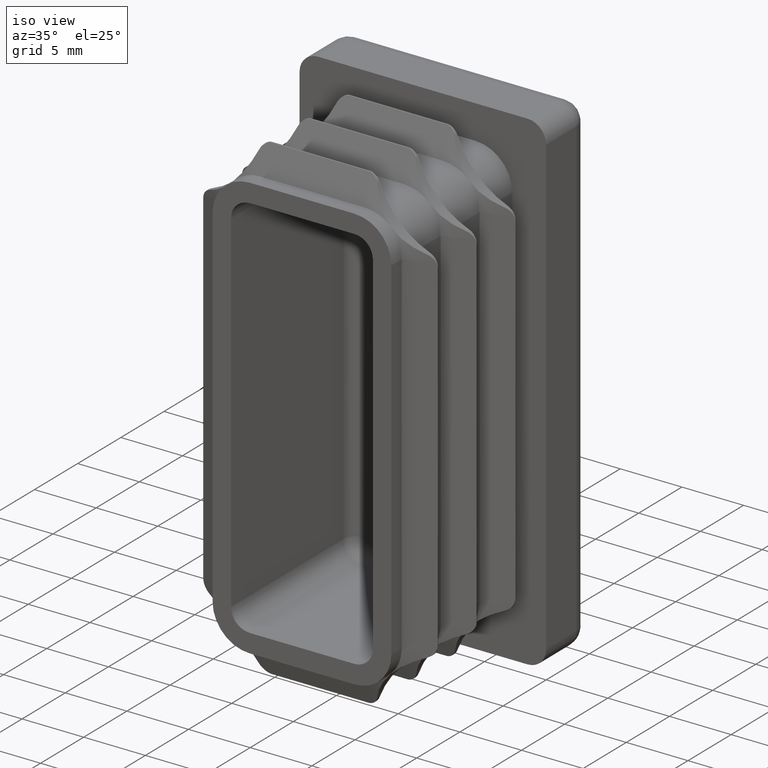
[diagram: clean part render]
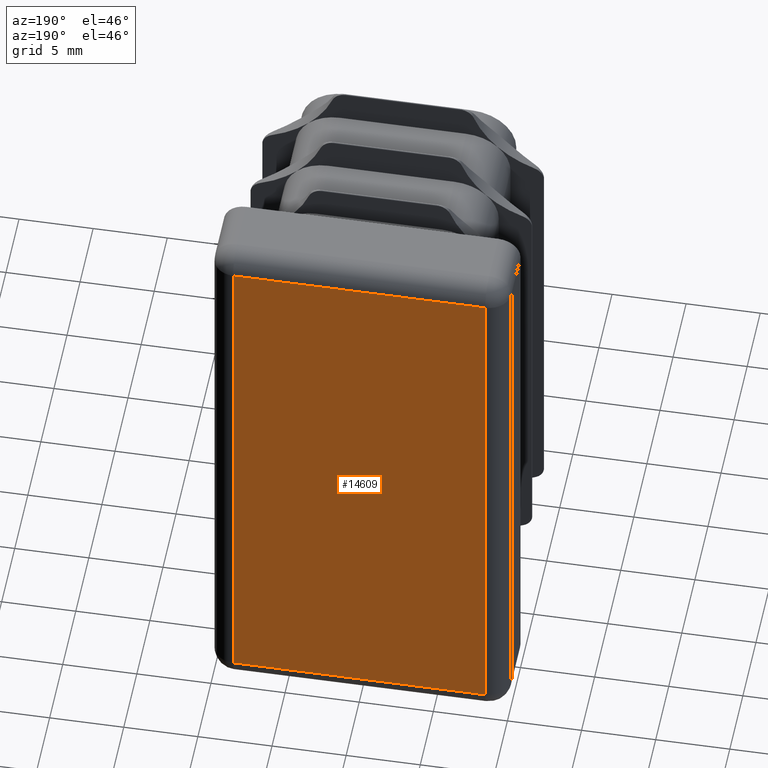
[diagram: tour spotlight — one face highlighted and labeled with its STEP entity id]
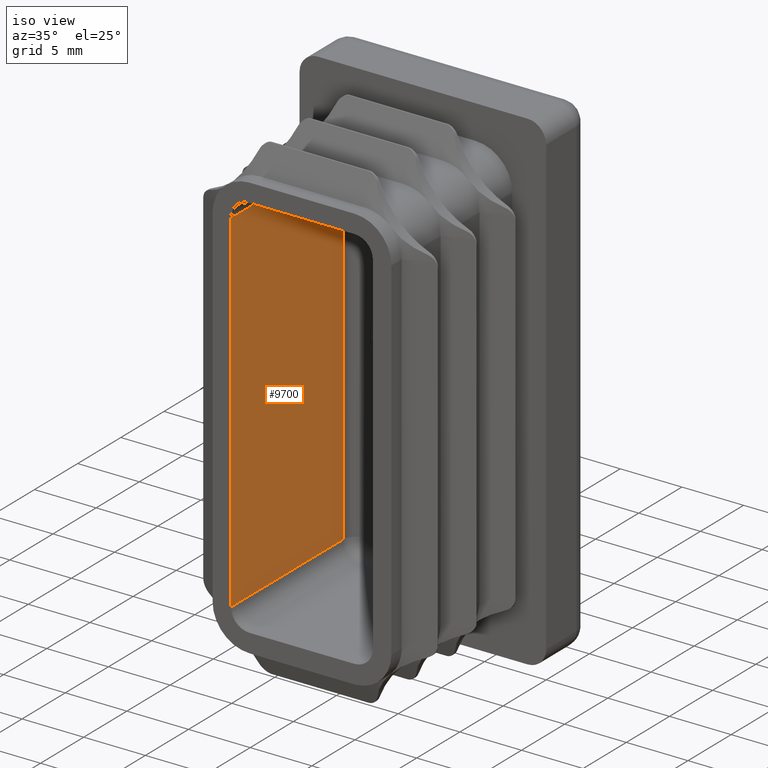
[diagram: tour spotlight — one face highlighted and labeled with its STEP entity id]
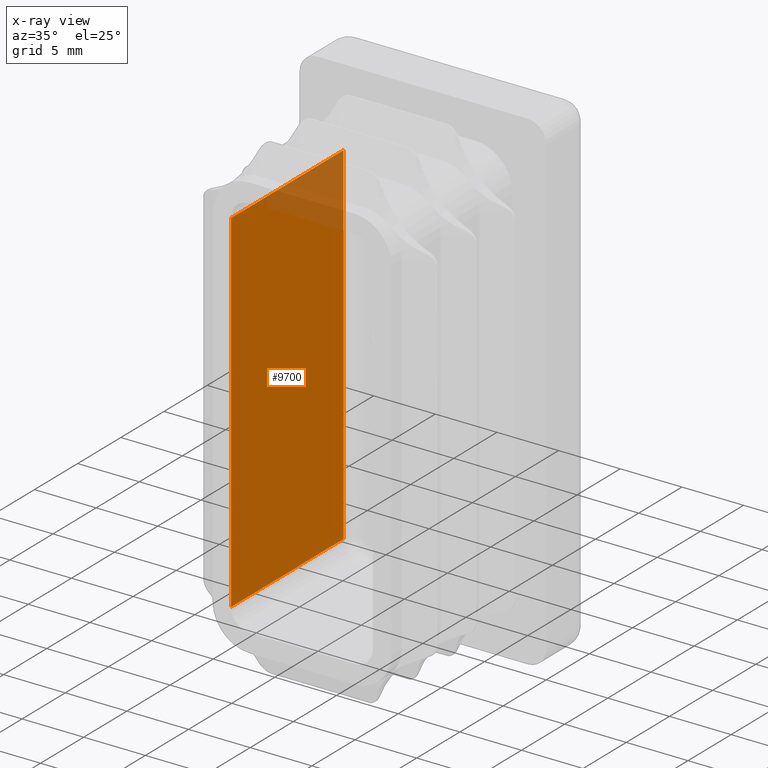
[diagram: x-ray of the same camera — body ghosted, this tour face saturated]
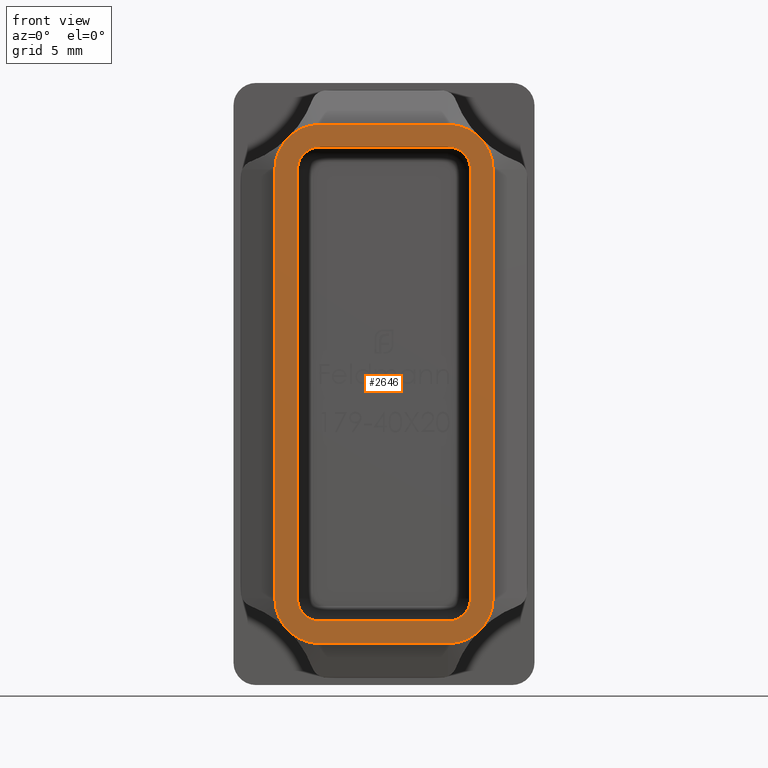
[diagram: tour spotlight — one face highlighted and labeled with its STEP entity id]
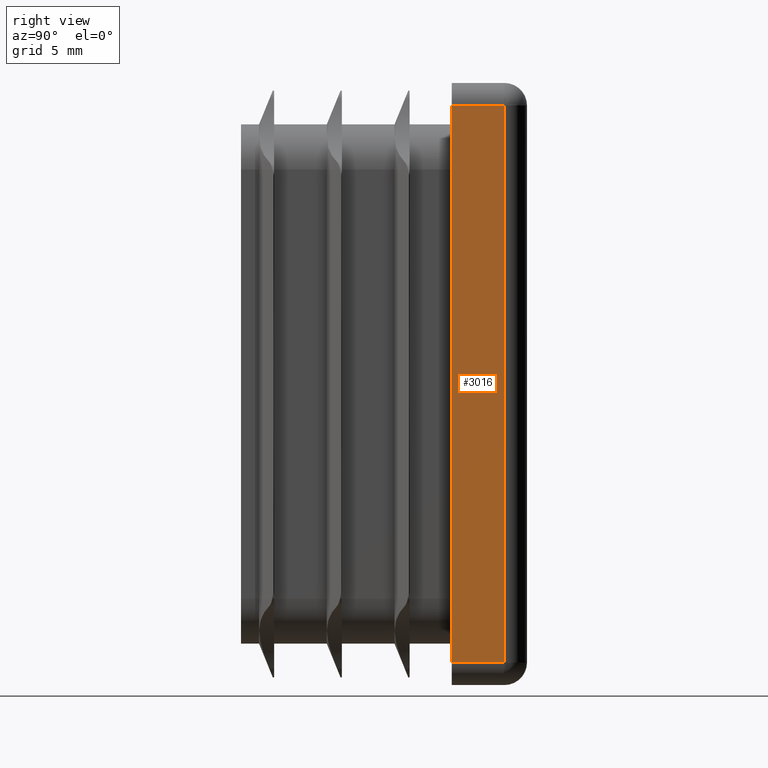
[diagram: tour spotlight — one face highlighted and labeled with its STEP entity id]
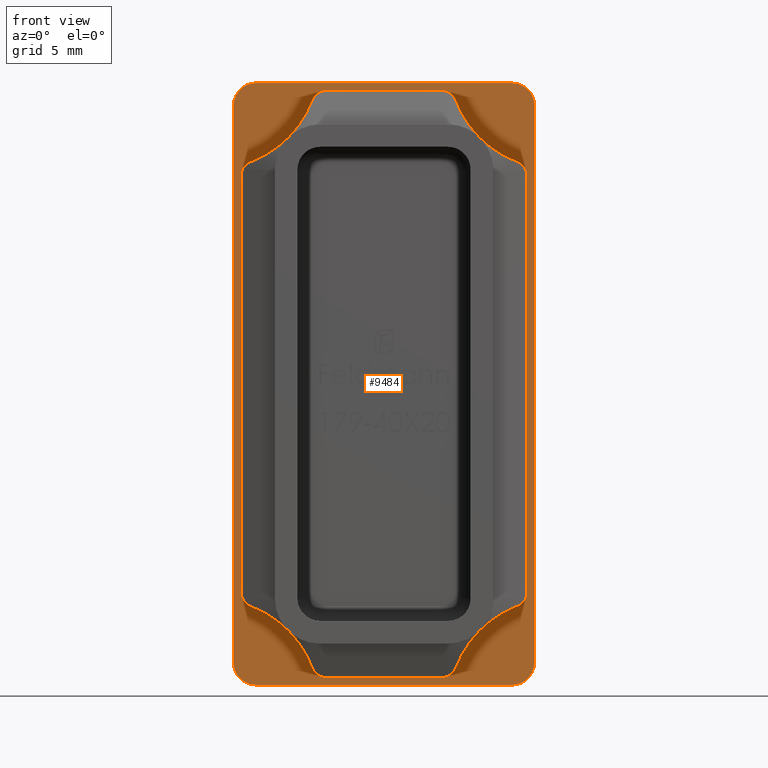
[diagram: tour spotlight — one face highlighted and labeled with its STEP entity id]
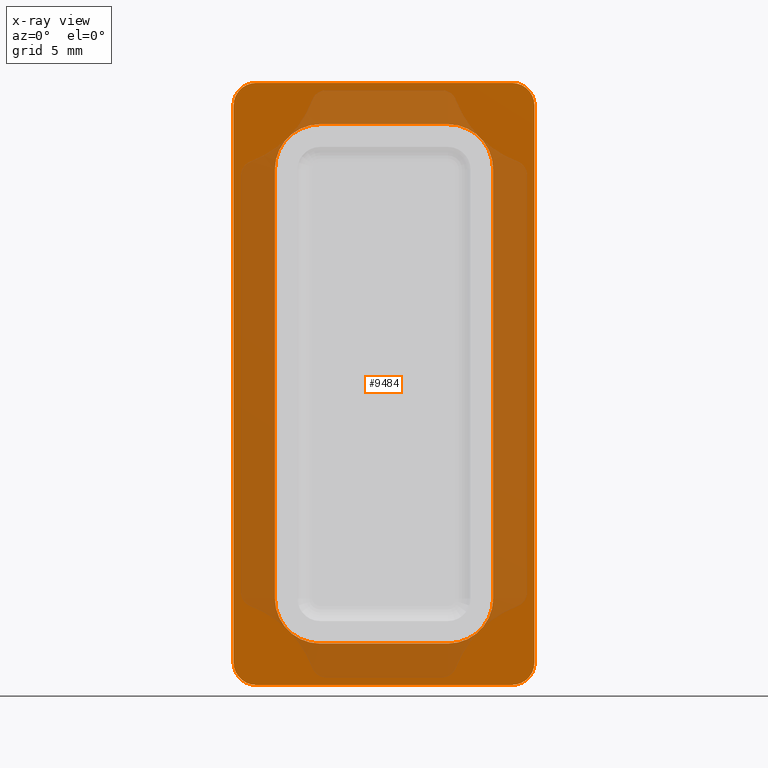
[diagram: x-ray of the same camera — body ghosted, this tour face saturated]
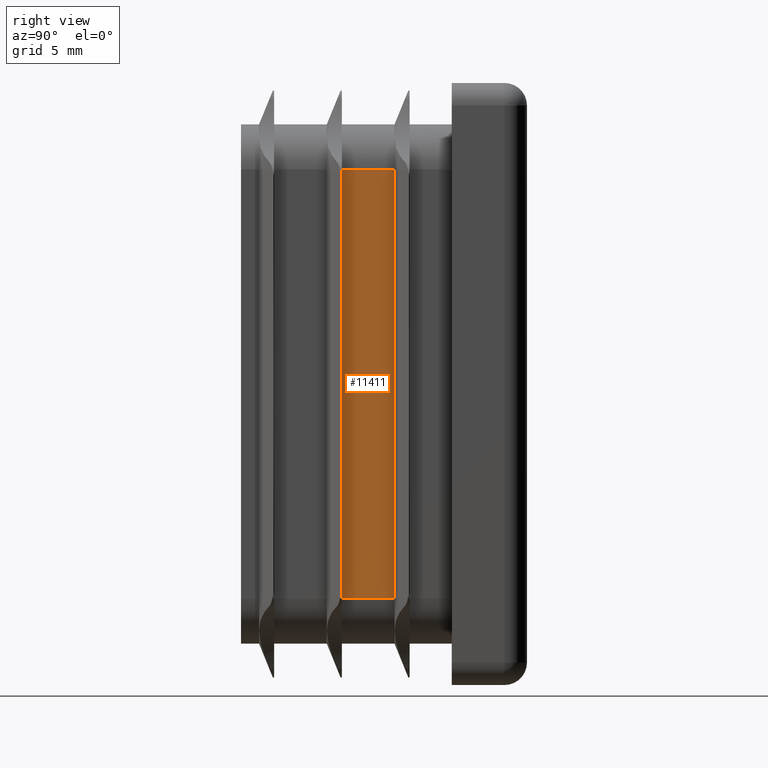
[diagram: tour spotlight — one face highlighted and labeled with its STEP entity id]
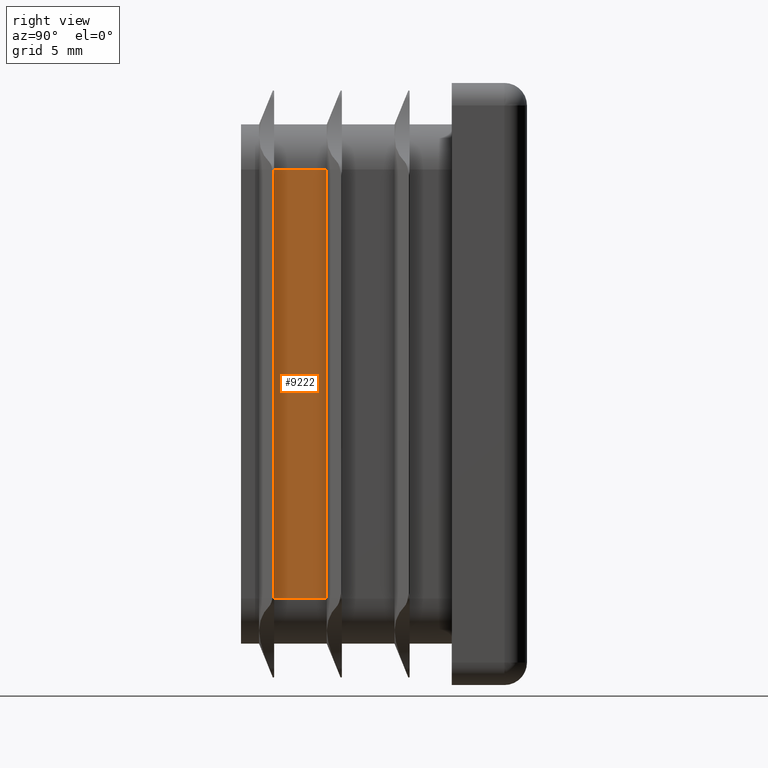
[diagram: tour spotlight — one face highlighted and labeled with its STEP entity id]
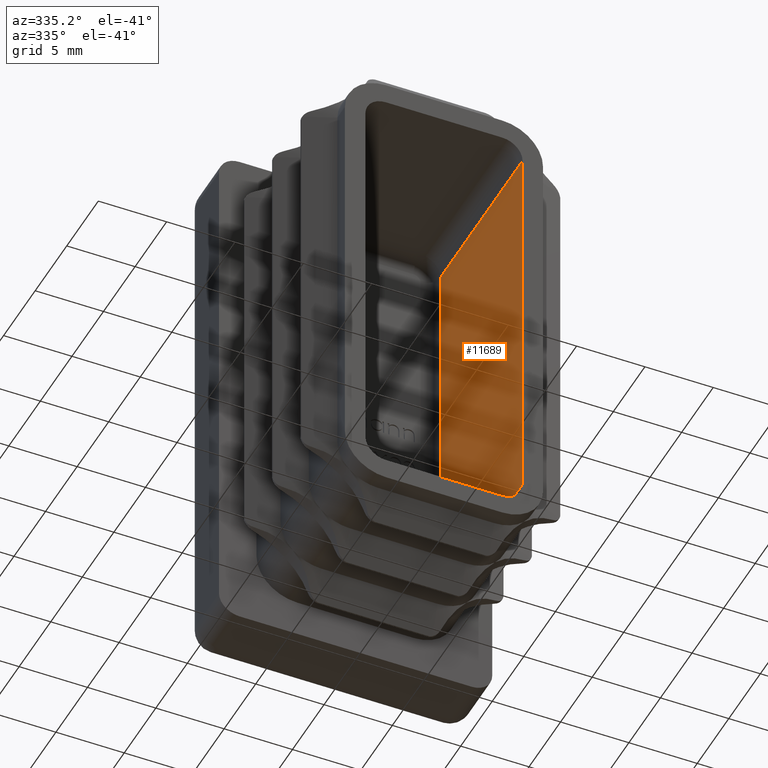
[diagram: tour spotlight — one face highlighted and labeled with its STEP entity id]
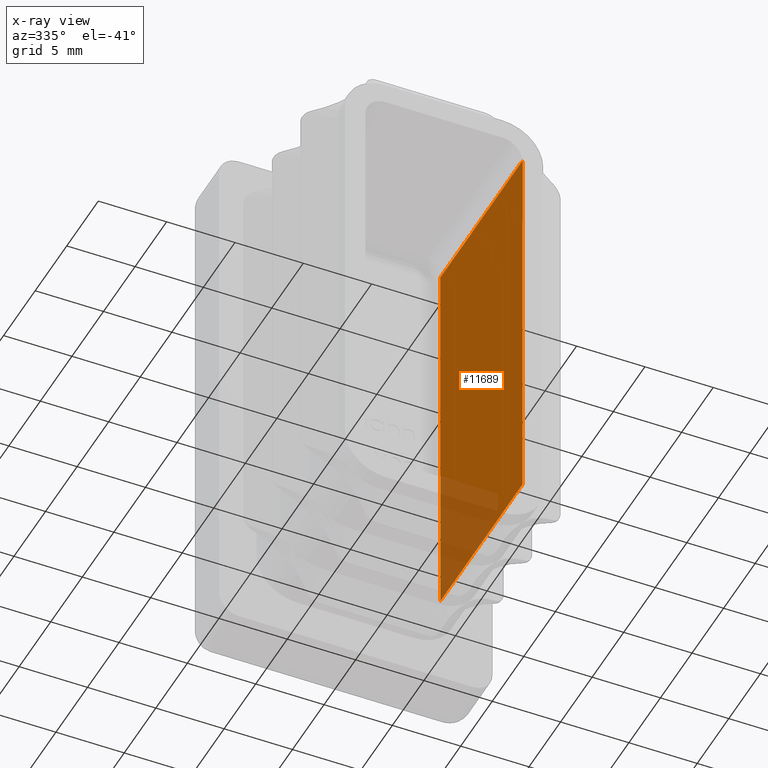
[diagram: x-ray of the same camera — body ghosted, this tour face saturated]
A machine part: a face-by-face anatomy tour. The part has 447 B-rep faces; the first image is the clean iso view, then the 8 largest visible faces are spotlighted one at a time (largest first), each with its STEP entity span.

Face 1 — auxiliary view, entity #14609. In plain terms, the highlighted planar face has unit normal (0, 1, 0).
Definition (entity closure, byte-faithful):
#180 = VECTOR ( 'NONE', #11767, 1000.000000000000000 ) ;
#647 = LINE ( 'NONE', #8558, #180 ) ;
#654 = AXIS2_PLACEMENT_3D ( 'NONE', #18822, #8409, #11312 ) ;
#1038 = PLANE ( 'NONE',  #654 ) ;
#1414 = CARTESIAN_POINT ( 'NONE',  ( -8.499999999999996447, 5.000000000000000000, 18.50000000000000000 ) ) ;
#2298 = DIRECTION ( 'NONE',  ( 1.000000000000000000, -0.000000000000000000, 0.000000000000000000 ) ) ;
#2825 = LINE ( 'NONE', #17149, #8555 ) ;
#3050 = CARTESIAN_POINT ( 'NONE',  ( 8.500000000000000000, 5.000000000000000000, -18.50000000000000000 ) ) ;
#3173 = VECTOR ( 'NONE', #9996, 1000.000000000000000 ) ;
#3285 = CARTESIAN_POINT ( 'NONE',  ( -8.500000000000000000, 5.000000000000000000, -18.50000000000000000 ) ) ;
#4873 = VERTEX_POINT ( 'NONE', #1414 ) ;
#5452 = EDGE_CURVE ( 'NONE', #7691, #4873, #5924, .T. ) ;
#5509 = EDGE_CURVE ( 'NONE', #17380, #7691, #15833, .T. ) ;
#5924 = LINE ( 'NONE', #9618, #9604 ) ;
#6018 = EDGE_CURVE ( 'NONE', #9917, #17380, #647, .T. ) ;
#7691 = VERTEX_POINT ( 'NONE', #3285 ) ;
#8074 = ORIENTED_EDGE ( 'NONE', *, *, #5452, .T. ) ;
#8409 = DIRECTION ( 'NONE',  ( 0.000000000000000000, 1.000000000000000000, 0.000000000000000000 ) ) ;
#8555 = VECTOR ( 'NONE', #2298, 1000.000000000000000 ) ;
#8558 = CARTESIAN_POINT ( 'NONE',  ( 8.500000000000000000, 5.000000000000000000, -18.50000000000000000 ) ) ;
#8956 = EDGE_LOOP ( 'NONE', ( #8074, #15411, #18825, #10207 ) ) ;
#9604 = VECTOR ( 'NONE', #17448, 1000.000000000000000 ) ;
#9618 = CARTESIAN_POINT ( 'NONE',  ( -8.499999999999996447, 5.000000000000000000, 18.50000000000000000 ) ) ;
#9917 = VERTEX_POINT ( 'NONE', #19038 ) ;
#9996 = DIRECTION ( 'NONE',  ( -1.000000000000000000, 0.000000000000000000, 0.000000000000000000 ) ) ;
#10207 = ORIENTED_EDGE ( 'NONE', *, *, #5509, .T. ) ;
#10472 = FACE_OUTER_BOUND ( 'NONE', #8956, .T. ) ;
#11312 = DIRECTION ( 'NONE',  ( 0.000000000000000000, -0.000000000000000000, 1.000000000000000000 ) ) ;
#11409 = EDGE_CURVE ( 'NONE', #4873, #9917, #2825, .T. ) ;
#11413 = CARTESIAN_POINT ( 'NONE',  ( -8.500000000000000000, 5.000000000000000000, -18.50000000000000000 ) ) ;
#11767 = DIRECTION ( 'NONE',  ( -8.673617379884035472E-17, 0.000000000000000000, -1.000000000000000000 ) ) ;
#14609 = ADVANCED_FACE ( 'NONE', ( #10472 ), #1038, .T. ) ;
#15411 = ORIENTED_EDGE ( 'NONE', *, *, #11409, .T. ) ;
#15833 = LINE ( 'NONE', #11413, #3173 ) ;
#17149 = CARTESIAN_POINT ( 'NONE',  ( 8.500000000000005329, 5.000000000000000000, 18.50000000000000000 ) ) ;
#17380 = VERTEX_POINT ( 'NONE', #3050 ) ;
#17448 = DIRECTION ( 'NONE',  ( 8.673617379884035472E-17, -0.000000000000000000, 1.000000000000000000 ) ) ;
#18822 = CARTESIAN_POINT ( 'NONE',  ( 0.000000000000000000, 5.000000000000000000, 0.000000000000000000 ) ) ;
#18825 = ORIENTED_EDGE ( 'NONE', *, *, #6018, .T. ) ;
#19038 = CARTESIAN_POINT ( 'NONE',  ( 8.500000000000003553, 5.000000000000000000, 18.50000000000000000 ) ) ;

Face 2 — iso view, entity #9700. An x-ray twin of the same camera follows (body ghosted, this face saturated) — the face is partly hidden behind the body. In plain terms, the highlighted planar face has unit normal (1, 0, 0).
Definition (entity closure, byte-faithful):
#209 = CARTESIAN_POINT ( 'NONE',  ( -5.750000000000003553, -0.9999999999999991118, 14.24999999999999822 ) ) ;
#867 = VECTOR ( 'NONE', #15155, 1000.000000000000000 ) ;
#1065 = DIRECTION ( 'NONE',  ( 1.000000000000000000, 0.000000000000000000, 3.043374519257556522E-16 ) ) ;
#1185 = DIRECTION ( 'NONE',  ( 3.043374519257556522E-16, -0.000000000000000000, -1.000000000000000000 ) ) ;
#1639 = EDGE_CURVE ( 'NONE', #15874, #14099, #17480, .T. ) ;
#2060 = CARTESIAN_POINT ( 'NONE',  ( -5.749999999999992895, -14.00000000000000000, -14.25000000000000178 ) ) ;
#2155 = CARTESIAN_POINT ( 'NONE',  ( -5.750000000000003553, -0.9999999999999991118, 14.24999999999999822 ) ) ;
#2811 = ORIENTED_EDGE ( 'NONE', *, *, #9888, .T. ) ;
#2913 = LINE ( 'NONE', #10322, #867 ) ;
#3573 = VECTOR ( 'NONE', #4863, 1000.000000000000000 ) ;
#3818 = CARTESIAN_POINT ( 'NONE',  ( -5.749999999999992895, -0.9999999999999991118, -14.25000000000000178 ) ) ;
#4863 = DIRECTION ( 'NONE',  ( -3.043374519257556522E-16, -0.000000000000000000, 1.000000000000000000 ) ) ;
#5225 = PLANE ( 'NONE',  #9578 ) ;
#6841 = EDGE_CURVE ( 'NONE', #7759, #12595, #2913, .T. ) ;
#7122 = VECTOR ( 'NONE', #13275, 1000.000000000000000 ) ;
#7759 = VERTEX_POINT ( 'NONE', #2060 ) ;
#8147 = LINE ( 'NONE', #14608, #11814 ) ;
#8979 = EDGE_CURVE ( 'NONE', #12595, #14099, #15543, .T. ) ;
#9394 = CARTESIAN_POINT ( 'NONE',  ( -5.750000000000003553, -14.00000000000000000, 14.24999999999999822 ) ) ;
#9578 = AXIS2_PLACEMENT_3D ( 'NONE', #12692, #1065, #17073 ) ;
#9700 = ADVANCED_FACE ( 'NONE', ( #18732 ), #5225, .T. ) ;
#9888 = EDGE_CURVE ( 'NONE', #15874, #7759, #8147, .T. ) ;
#10252 = CARTESIAN_POINT ( 'NONE',  ( -5.750000000000003553, -14.00000000000000000, 14.24999999999999822 ) ) ;
#10322 = CARTESIAN_POINT ( 'NONE',  ( -5.749999999999992895, -14.00000000000000000, -14.25000000000000178 ) ) ;
#11424 = ORIENTED_EDGE ( 'NONE', *, *, #8979, .T. ) ;
#11814 = VECTOR ( 'NONE', #1185, 1000.000000000000000 ) ;
#12005 = ORIENTED_EDGE ( 'NONE', *, *, #6841, .T. ) ;
#12595 = VERTEX_POINT ( 'NONE', #3818 ) ;
#12692 = CARTESIAN_POINT ( 'NONE',  ( -5.750000000000003553, -14.00000000000000000, 14.24999999999999822 ) ) ;
#13275 = DIRECTION ( 'NONE',  ( -0.000000000000000000, 1.000000000000000000, -0.000000000000000000 ) ) ;
#14099 = VERTEX_POINT ( 'NONE', #2155 ) ;
#14608 = CARTESIAN_POINT ( 'NONE',  ( -5.750000000000003553, -14.00000000000000000, 14.24999999999999822 ) ) ;
#15155 = DIRECTION ( 'NONE',  ( -0.000000000000000000, 1.000000000000000000, -0.000000000000000000 ) ) ;
#15543 = LINE ( 'NONE', #209, #3573 ) ;
#15874 = VERTEX_POINT ( 'NONE', #9394 ) ;
#16509 = EDGE_LOOP ( 'NONE', ( #12005, #11424, #18595, #2811 ) ) ;
#17073 = DIRECTION ( 'NONE',  ( 3.043374519257556522E-16, 0.000000000000000000, -1.000000000000000000 ) ) ;
#17480 = LINE ( 'NONE', #10252, #7122 ) ;
#18595 = ORIENTED_EDGE ( 'NONE', *, *, #1639, .F. ) ;
#18732 = FACE_OUTER_BOUND ( 'NONE', #16509, .T. ) ;

Face 3 — front view, entity #2646. In plain terms, the highlighted planar face has unit normal (0, -1, 0).
Definition (entity closure, byte-faithful):
#83 = AXIS2_PLACEMENT_3D ( 'NONE', #9398, #10700, #3304 ) ;
#116 = CARTESIAN_POINT ( 'NONE',  ( 4.250000000000004441, -14.00000000000000000, -15.75000000000000000 ) ) ;
#208 = CARTESIAN_POINT ( 'NONE',  ( -7.250000000000002665, -14.00000000000000000, 14.24999999999999822 ) ) ;
#429 = VERTEX_POINT ( 'NONE', #4672 ) ;
#430 = DIRECTION ( 'NONE',  ( 0.000000000000000000, -1.000000000000000000, 0.000000000000000000 ) ) ;
#919 = ORIENTED_EDGE ( 'NONE', *, *, #13043, .F. ) ;
#1058 = VERTEX_POINT ( 'NONE', #12426 ) ;
#1133 = AXIS2_PLACEMENT_3D ( 'NONE', #4182, #1302, #17550 ) ;
#1185 = DIRECTION ( 'NONE',  ( 3.043374519257556522E-16, -0.000000000000000000, -1.000000000000000000 ) ) ;
#1302 = DIRECTION ( 'NONE',  ( 0.000000000000000000, -1.000000000000000000, 0.000000000000000000 ) ) ;
#1350 = EDGE_CURVE ( 'NONE', #14514, #7612, #3449, .T. ) ;
#1476 = LINE ( 'NONE', #208, #16678 ) ;
#1510 = DIRECTION ( 'NONE',  ( 0.000000000000000000, 0.000000000000000000, -1.000000000000000000 ) ) ;
#1550 = CARTESIAN_POINT ( 'NONE',  ( -4.250000000000002665, -14.00000000000000000, 15.75000000000000000 ) ) ;
#1587 = ORIENTED_EDGE ( 'NONE', *, *, #16663, .T. ) ;
#1611 = EDGE_CURVE ( 'NONE', #10362, #15693, #9670, .T. ) ;
#1733 = DIRECTION ( 'NONE',  ( 0.000000000000000000, -1.000000000000000000, 0.000000000000000000 ) ) ;
#1751 = AXIS2_PLACEMENT_3D ( 'NONE', #10375, #10437, #1510 ) ;
#2013 = EDGE_CURVE ( 'NONE', #429, #14253, #3660, .T. ) ;
#2060 = CARTESIAN_POINT ( 'NONE',  ( -5.749999999999992895, -14.00000000000000000, -14.25000000000000178 ) ) ;
#2120 = CARTESIAN_POINT ( 'NONE',  ( -4.249999999999994671, -14.00000000000000000, -17.25000000000000000 ) ) ;
#2163 = VERTEX_POINT ( 'NONE', #14793 ) ;
#2169 = LINE ( 'NONE', #3127, #8350 ) ;
#2480 = CIRCLE ( 'NONE', #3734, 1.499999999999999556 ) ;
#2582 = CARTESIAN_POINT ( 'NONE',  ( -4.250000000000002665, -14.00000000000000000, 17.25000000000000000 ) ) ;
#2646 = ADVANCED_FACE ( 'NONE', ( #17901, #6871 ), #18308, .T. ) ;
#2841 = DIRECTION ( 'NONE',  ( 0.000000000000000000, 0.000000000000000000, 1.000000000000000000 ) ) ;
#2925 = CARTESIAN_POINT ( 'NONE',  ( 5.749999999999998224, -14.00000000000000000, 14.25000000000000178 ) ) ;
#3004 = CIRCLE ( 'NONE', #4157, 1.499999999999997780 ) ;
#3127 = CARTESIAN_POINT ( 'NONE',  ( 7.249999999999997335, -14.00000000000000000, 14.25000000000000178 ) ) ;
#3304 = DIRECTION ( 'NONE',  ( 0.000000000000000000, 0.000000000000000000, 1.000000000000000000 ) ) ;
#3344 = ORIENTED_EDGE ( 'NONE', *, *, #10332, .T. ) ;
#3449 = LINE ( 'NONE', #6407, #18172 ) ;
#3608 = LINE ( 'NONE', #2120, #6835 ) ;
#3660 = CIRCLE ( 'NONE', #1133, 2.999999999999999112 ) ;
#3699 = ORIENTED_EDGE ( 'NONE', *, *, #18725, .T. ) ;
#3734 = AXIS2_PLACEMENT_3D ( 'NONE', #14659, #18902, #8805 ) ;
#3751 = VECTOR ( 'NONE', #11445, 1000.000000000000000 ) ;
#3767 = AXIS2_PLACEMENT_3D ( 'NONE', #9117, #1733, #10408 ) ;
#3824 = CARTESIAN_POINT ( 'NONE',  ( 4.250000000000006217, -14.00000000000000000, -14.25000000000000178 ) ) ;
#3868 = ORIENTED_EDGE ( 'NONE', *, *, #2013, .T. ) ;
#3921 = CIRCLE ( 'NONE', #83, 2.999999999999999112 ) ;
#4039 = CARTESIAN_POINT ( 'NONE',  ( -4.249999999999994671, -14.00000000000000000, -15.75000000000000000 ) ) ;
#4157 = AXIS2_PLACEMENT_3D ( 'NONE', #12222, #430, #7717 ) ;
#4160 = ORIENTED_EDGE ( 'NONE', *, *, #9888, .F. ) ;
#4182 = CARTESIAN_POINT ( 'NONE',  ( -4.249999999999994671, -14.00000000000000000, -14.25000000000000178 ) ) ;
#4403 = CIRCLE ( 'NONE', #15052, 3.000000000000000888 ) ;
#4672 = CARTESIAN_POINT ( 'NONE',  ( -7.249999999999994671, -14.00000000000000000, -14.25000000000000533 ) ) ;
#4825 = CARTESIAN_POINT ( 'NONE',  ( -4.249999999999994671, -14.00000000000000000, -15.75000000000000000 ) ) ;
#4912 = DIRECTION ( 'NONE',  ( -1.000000000000000000, -0.000000000000000000, -0.000000000000000000 ) ) ;
#5514 = DIRECTION ( 'NONE',  ( 1.000000000000000000, 0.000000000000000000, 0.000000000000000000 ) ) ;
#5741 = VECTOR ( 'NONE', #5514, 1000.000000000000000 ) ;
#5938 = EDGE_CURVE ( 'NONE', #2163, #14514, #2480, .T. ) ;
#6138 = EDGE_CURVE ( 'NONE', #14253, #10362, #3608, .T. ) ;
#6407 = CARTESIAN_POINT ( 'NONE',  ( -4.250000000000002665, -14.00000000000000000, 15.75000000000000000 ) ) ;
#6723 = DIRECTION ( 'NONE',  ( 0.000000000000000000, -0.000000000000000000, -1.000000000000000000 ) ) ;
#6818 = VERTEX_POINT ( 'NONE', #18231 ) ;
#6835 = VECTOR ( 'NONE', #10935, 1000.000000000000000 ) ;
#6871 = FACE_BOUND ( 'NONE', #8184, .T. ) ;
#7159 = DIRECTION ( 'NONE',  ( 0.000000000000000000, -1.000000000000000000, 0.000000000000000000 ) ) ;
#7517 = CARTESIAN_POINT ( 'NONE',  ( 7.249999999999997335, -14.00000000000000000, 14.25000000000000178 ) ) ;
#7612 = VERTEX_POINT ( 'NONE', #1550 ) ;
#7717 = DIRECTION ( 'NONE',  ( 0.000000000000000000, 0.000000000000000000, -1.000000000000000000 ) ) ;
#7759 = VERTEX_POINT ( 'NONE', #2060 ) ;
#7849 = AXIS2_PLACEMENT_3D ( 'NONE', #10172, #11646, #2841 ) ;
#8147 = LINE ( 'NONE', #14608, #11814 ) ;
#8184 = EDGE_LOOP ( 'NONE', ( #4160, #8317, #16474, #13187, #17145, #919, #8207, #14970 ) ) ;
#8207 = ORIENTED_EDGE ( 'NONE', *, *, #13216, .F. ) ;
#8317 = ORIENTED_EDGE ( 'NONE', *, *, #11884, .F. ) ;
#8350 = VECTOR ( 'NONE', #13284, 1000.000000000000000 ) ;
#8594 = VERTEX_POINT ( 'NONE', #7517 ) ;
#8652 = CARTESIAN_POINT ( 'NONE',  ( 4.249999999999997335, -14.00000000000000000, 14.25000000000000000 ) ) ;
#8805 = DIRECTION ( 'NONE',  ( 0.000000000000000000, 0.000000000000000000, 1.000000000000000000 ) ) ;
#8924 = EDGE_CURVE ( 'NONE', #7759, #11712, #10469, .T. ) ;
#9117 = CARTESIAN_POINT ( 'NONE',  ( -4.249999999999994671, -14.00000000000000000, -14.25000000000000178 ) ) ;
#9326 = CARTESIAN_POINT ( 'NONE',  ( 4.249999999999997335, -14.00000000000000000, 15.75000000000000000 ) ) ;
#9394 = CARTESIAN_POINT ( 'NONE',  ( -5.750000000000003553, -14.00000000000000000, 14.24999999999999822 ) ) ;
#9398 = CARTESIAN_POINT ( 'NONE',  ( -4.250000000000002665, -14.00000000000000000, 14.25000000000000178 ) ) ;
#9670 = CIRCLE ( 'NONE', #1751, 2.999999999999999112 ) ;
#9888 = EDGE_CURVE ( 'NONE', #15874, #7759, #8147, .T. ) ;
#10172 = CARTESIAN_POINT ( 'NONE',  ( -4.250000000000002665, -14.00000000000000000, 14.25000000000000178 ) ) ;
#10332 = EDGE_CURVE ( 'NONE', #1058, #15378, #16885, .T. ) ;
#10362 = VERTEX_POINT ( 'NONE', #13237 ) ;
#10375 = CARTESIAN_POINT ( 'NONE',  ( 4.250000000000006217, -14.00000000000000000, -14.25000000000000178 ) ) ;
#10408 = DIRECTION ( 'NONE',  ( 0.000000000000000000, 0.000000000000000000, 1.000000000000000000 ) ) ;
#10437 = DIRECTION ( 'NONE',  ( 0.000000000000000000, -1.000000000000000000, 0.000000000000000000 ) ) ;
#10469 = CIRCLE ( 'NONE', #3767, 1.499999999999999556 ) ;
#10556 = ORIENTED_EDGE ( 'NONE', *, *, #16043, .T. ) ;
#10700 = DIRECTION ( 'NONE',  ( 0.000000000000000000, -1.000000000000000000, 0.000000000000000000 ) ) ;
#10935 = DIRECTION ( 'NONE',  ( 1.000000000000000000, 0.000000000000000000, 0.000000000000000000 ) ) ;
#10964 = ORIENTED_EDGE ( 'NONE', *, *, #6138, .T. ) ;
#11356 = DIRECTION ( 'NONE',  ( 0.000000000000000000, 0.000000000000000000, 1.000000000000000000 ) ) ;
#11445 = DIRECTION ( 'NONE',  ( -1.000000000000000000, -0.000000000000000000, -0.000000000000000000 ) ) ;
#11646 = DIRECTION ( 'NONE',  ( 0.000000000000000000, -1.000000000000000000, 0.000000000000000000 ) ) ;
#11712 = VERTEX_POINT ( 'NONE', #4825 ) ;
#11747 = ORIENTED_EDGE ( 'NONE', *, *, #1611, .T. ) ;
#11814 = VECTOR ( 'NONE', #1185, 1000.000000000000000 ) ;
#11848 = AXIS2_PLACEMENT_3D ( 'NONE', #3824, #12379, #6723 ) ;
#11884 = EDGE_CURVE ( 'NONE', #7612, #15874, #15231, .T. ) ;
#11885 = DIRECTION ( 'NONE',  ( 2.739037067331800130E-16, -0.000000000000000000, -1.000000000000000000 ) ) ;
#11989 = LINE ( 'NONE', #2925, #18883 ) ;
#12016 = VERTEX_POINT ( 'NONE', #16151 ) ;
#12222 = CARTESIAN_POINT ( 'NONE',  ( 4.250000000000006217, -14.00000000000000000, -14.25000000000000178 ) ) ;
#12379 = DIRECTION ( 'NONE',  ( 0.000000000000000000, -1.000000000000000000, 0.000000000000000000 ) ) ;
#12426 = CARTESIAN_POINT ( 'NONE',  ( 4.249999999999997335, -14.00000000000000000, 17.25000000000000000 ) ) ;
#13043 = EDGE_CURVE ( 'NONE', #13797, #12016, #3004, .T. ) ;
#13187 = ORIENTED_EDGE ( 'NONE', *, *, #5938, .F. ) ;
#13216 = EDGE_CURVE ( 'NONE', #11712, #13797, #17254, .T. ) ;
#13237 = CARTESIAN_POINT ( 'NONE',  ( 4.250000000000006217, -14.00000000000000000, -17.25000000000000000 ) ) ;
#13284 = DIRECTION ( 'NONE',  ( -2.739037067331800623E-16, -0.000000000000000000, 1.000000000000000000 ) ) ;
#13494 = ORIENTED_EDGE ( 'NONE', *, *, #13703, .T. ) ;
#13703 = EDGE_CURVE ( 'NONE', #8594, #1058, #4403, .T. ) ;
#13797 = VERTEX_POINT ( 'NONE', #116 ) ;
#14253 = VERTEX_POINT ( 'NONE', #16277 ) ;
#14514 = VERTEX_POINT ( 'NONE', #9326 ) ;
#14543 = CARTESIAN_POINT ( 'NONE',  ( 7.250000000000005329, -14.00000000000000000, -14.24999999999999822 ) ) ;
#14608 = CARTESIAN_POINT ( 'NONE',  ( -5.750000000000003553, -14.00000000000000000, 14.24999999999999822 ) ) ;
#14659 = CARTESIAN_POINT ( 'NONE',  ( 4.249999999999997335, -14.00000000000000000, 14.25000000000000000 ) ) ;
#14793 = CARTESIAN_POINT ( 'NONE',  ( 5.749999999999998224, -14.00000000000000000, 14.25000000000000178 ) ) ;
#14970 = ORIENTED_EDGE ( 'NONE', *, *, #8924, .F. ) ;
#15052 = AXIS2_PLACEMENT_3D ( 'NONE', #8652, #7159, #11356 ) ;
#15231 = CIRCLE ( 'NONE', #7849, 1.499999999999997780 ) ;
#15378 = VERTEX_POINT ( 'NONE', #15608 ) ;
#15608 = CARTESIAN_POINT ( 'NONE',  ( -4.250000000000002665, -14.00000000000000000, 17.25000000000000000 ) ) ;
#15693 = VERTEX_POINT ( 'NONE', #14543 ) ;
#15874 = VERTEX_POINT ( 'NONE', #9394 ) ;
#16043 = EDGE_CURVE ( 'NONE', #6818, #429, #1476, .T. ) ;
#16151 = CARTESIAN_POINT ( 'NONE',  ( 5.750000000000007105, -14.00000000000000000, -14.25000000000000000 ) ) ;
#16277 = CARTESIAN_POINT ( 'NONE',  ( -4.249999999999994671, -14.00000000000000000, -17.25000000000000000 ) ) ;
#16360 = DIRECTION ( 'NONE',  ( -3.043374519257556029E-16, -0.000000000000000000, 1.000000000000000000 ) ) ;
#16474 = ORIENTED_EDGE ( 'NONE', *, *, #1350, .F. ) ;
#16663 = EDGE_CURVE ( 'NONE', #15693, #8594, #2169, .T. ) ;
#16678 = VECTOR ( 'NONE', #11885, 1000.000000000000000 ) ;
#16885 = LINE ( 'NONE', #2582, #3751 ) ;
#17145 = ORIENTED_EDGE ( 'NONE', *, *, #18554, .F. ) ;
#17183 = EDGE_LOOP ( 'NONE', ( #11747, #1587, #13494, #3344, #3699, #10556, #3868, #10964 ) ) ;
#17254 = LINE ( 'NONE', #4039, #5741 ) ;
#17550 = DIRECTION ( 'NONE',  ( 0.000000000000000000, 0.000000000000000000, 1.000000000000000000 ) ) ;
#17901 = FACE_OUTER_BOUND ( 'NONE', #17183, .T. ) ;
#18172 = VECTOR ( 'NONE', #4912, 1000.000000000000000 ) ;
#18231 = CARTESIAN_POINT ( 'NONE',  ( -7.250000000000002665, -14.00000000000000000, 14.24999999999999822 ) ) ;
#18308 = PLANE ( 'NONE',  #11848 ) ;
#18554 = EDGE_CURVE ( 'NONE', #12016, #2163, #11989, .T. ) ;
#18725 = EDGE_CURVE ( 'NONE', #15378, #6818, #3921, .T. ) ;
#18883 = VECTOR ( 'NONE', #16360, 1000.000000000000000 ) ;
#18902 = DIRECTION ( 'NONE',  ( 0.000000000000000000, -1.000000000000000000, 0.000000000000000000 ) ) ;

Face 4 — right view, entity #3016. In plain terms, the highlighted planar face has unit normal (-1, 0, 0).
Definition (entity closure, byte-faithful):
#631 = VERTEX_POINT ( 'NONE', #14915 ) ;
#903 = CARTESIAN_POINT ( 'NONE',  ( 10.00000000000000355, 0.000000000000000000, 18.50000000000000000 ) ) ;
#1409 = EDGE_CURVE ( 'NONE', #10716, #7274, #14029, .T. ) ;
#1631 = AXIS2_PLACEMENT_3D ( 'NONE', #12625, #12495, #2157 ) ;
#2157 = DIRECTION ( 'NONE',  ( 8.673617379884035472E-17, 0.000000000000000000, 1.000000000000000000 ) ) ;
#2650 = ORIENTED_EDGE ( 'NONE', *, *, #12310, .T. ) ;
#3016 = ADVANCED_FACE ( 'NONE', ( #4780 ), #14165, .F. ) ;
#3333 = VERTEX_POINT ( 'NONE', #3451 ) ;
#3451 = CARTESIAN_POINT ( 'NONE',  ( 10.00000000000000000, 3.500000000000000000, -18.50000000000000000 ) ) ;
#3482 = LINE ( 'NONE', #14446, #14294 ) ;
#4780 = FACE_OUTER_BOUND ( 'NONE', #14092, .T. ) ;
#5630 = ORIENTED_EDGE ( 'NONE', *, *, #13562, .T. ) ;
#7252 = VECTOR ( 'NONE', #13120, 1000.000000000000000 ) ;
#7274 = VERTEX_POINT ( 'NONE', #10567 ) ;
#7886 = ORIENTED_EDGE ( 'NONE', *, *, #1409, .T. ) ;
#8415 = EDGE_CURVE ( 'NONE', #7274, #3333, #17845, .T. ) ;
#8600 = DIRECTION ( 'NONE',  ( 0.000000000000000000, -1.000000000000000000, 0.000000000000000000 ) ) ;
#8928 = CARTESIAN_POINT ( 'NONE',  ( 10.00000000000000000, 5.000000000000000000, -18.50000000000000000 ) ) ;
#9432 = CARTESIAN_POINT ( 'NONE',  ( 10.00000000000000355, 3.500000000000000000, 18.50000000000000000 ) ) ;
#9620 = CARTESIAN_POINT ( 'NONE',  ( 10.00000000000000000, 0.000000000000000000, -20.00000000000000000 ) ) ;
#10567 = CARTESIAN_POINT ( 'NONE',  ( 10.00000000000000000, 0.000000000000000000, -18.50000000000000000 ) ) ;
#10716 = VERTEX_POINT ( 'NONE', #903 ) ;
#11054 = LINE ( 'NONE', #9432, #14019 ) ;
#12310 = EDGE_CURVE ( 'NONE', #631, #10716, #3482, .T. ) ;
#12495 = DIRECTION ( 'NONE',  ( -1.000000000000000000, 0.000000000000000000, 8.673617379884035472E-17 ) ) ;
#12509 = ORIENTED_EDGE ( 'NONE', *, *, #8415, .T. ) ;
#12625 = CARTESIAN_POINT ( 'NONE',  ( 10.00000000000000000, 5.000000000000000000, -20.00000000000000000 ) ) ;
#13120 = DIRECTION ( 'NONE',  ( -0.000000000000000000, 1.000000000000000000, -0.000000000000000000 ) ) ;
#13562 = EDGE_CURVE ( 'NONE', #3333, #631, #11054, .T. ) ;
#13868 = DIRECTION ( 'NONE',  ( 8.673617379884035472E-17, -0.000000000000000000, 1.000000000000000000 ) ) ;
#14019 = VECTOR ( 'NONE', #13868, 1000.000000000000000 ) ;
#14029 = LINE ( 'NONE', #9620, #18414 ) ;
#14044 = DIRECTION ( 'NONE',  ( -8.673617379884035472E-17, -0.000000000000000000, -1.000000000000000000 ) ) ;
#14092 = EDGE_LOOP ( 'NONE', ( #12509, #5630, #2650, #7886 ) ) ;
#14165 = PLANE ( 'NONE',  #1631 ) ;
#14294 = VECTOR ( 'NONE', #8600, 1000.000000000000000 ) ;
#14446 = CARTESIAN_POINT ( 'NONE',  ( 10.00000000000000355, 5.000000000000000000, 18.50000000000000000 ) ) ;
#14915 = CARTESIAN_POINT ( 'NONE',  ( 10.00000000000000355, 3.500000000000000000, 18.50000000000000000 ) ) ;
#17845 = LINE ( 'NONE', #8928, #7252 ) ;
#18414 = VECTOR ( 'NONE', #14044, 1000.000000000000000 ) ;

Face 5 — front view, entity #9484. An x-ray twin of the same camera follows (body ghosted, this face saturated) — the face is partly hidden behind the body. In plain terms, the highlighted planar face has unit normal (0, 1, 0).
Definition (entity closure, byte-faithful):
#52 = EDGE_CURVE ( 'NONE', #6203, #1511, #8314, .T. ) ;
#72 = CARTESIAN_POINT ( 'NONE',  ( -8.500000000000000000, 0.000000000000000000, -20.00000000000000000 ) ) ;
#111 = CARTESIAN_POINT ( 'NONE',  ( 4.250000000000006217, 0.000000000000000000, -17.25000000000000000 ) ) ;
#130 = CIRCLE ( 'NONE', #6424, 2.999999999999999112 ) ;
#262 = CIRCLE ( 'NONE', #4795, 1.500000000000001332 ) ;
#412 = VERTEX_POINT ( 'NONE', #16401 ) ;
#524 = CARTESIAN_POINT ( 'NONE',  ( 4.249999999999997335, 0.000000000000000000, 14.25000000000000000 ) ) ;
#543 = CARTESIAN_POINT ( 'NONE',  ( 7.249999999999997335, 0.000000000000000000, 14.25000000000000178 ) ) ;
#787 = EDGE_CURVE ( 'NONE', #10716, #4417, #262, .T. ) ;
#903 = CARTESIAN_POINT ( 'NONE',  ( 10.00000000000000355, 0.000000000000000000, 18.50000000000000000 ) ) ;
#984 = DIRECTION ( 'NONE',  ( 2.739037067331800130E-16, -0.000000000000000000, -1.000000000000000000 ) ) ;
#1385 = EDGE_CURVE ( 'NONE', #7388, #16708, #17937, .T. ) ;
#1409 = EDGE_CURVE ( 'NONE', #10716, #7274, #14029, .T. ) ;
#1477 = DIRECTION ( 'NONE',  ( -0.000000000000000000, -1.000000000000000000, -0.000000000000000000 ) ) ;
#1511 = VERTEX_POINT ( 'NONE', #13022 ) ;
#1623 = VERTEX_POINT ( 'NONE', #111 ) ;
#1744 = CARTESIAN_POINT ( 'NONE',  ( -8.499999999999996447, 0.000000000000000000, 18.50000000000000000 ) ) ;
#1786 = CARTESIAN_POINT ( 'NONE',  ( 7.250000000000006217, 0.000000000000000000, -14.24999999999999822 ) ) ;
#1864 = VECTOR ( 'NONE', #11167, 1000.000000000000000 ) ;
#2345 = EDGE_CURVE ( 'NONE', #12389, #5555, #13084, .T. ) ;
#2432 = DIRECTION ( 'NONE',  ( 0.000000000000000000, -1.000000000000000000, 0.000000000000000000 ) ) ;
#2661 = CARTESIAN_POINT ( 'NONE',  ( -7.249999999999994671, 0.000000000000000000, -14.25000000000000533 ) ) ;
#2664 = ORIENTED_EDGE ( 'NONE', *, *, #15476, .F. ) ;
#2976 = VECTOR ( 'NONE', #16472, 1000.000000000000000 ) ;
#3219 = DIRECTION ( 'NONE',  ( -0.000000000000000000, -1.000000000000000000, -0.000000000000000000 ) ) ;
#3586 = DIRECTION ( 'NONE',  ( -3.469446951953611033E-15, 0.000000000000000000, 1.000000000000000000 ) ) ;
#3592 = CARTESIAN_POINT ( 'NONE',  ( -10.00000000000000000, 0.000000000000000000, -18.50000000000000000 ) ) ;
#3637 = CIRCLE ( 'NONE', #6811, 1.500000000000001332 ) ;
#3680 = EDGE_CURVE ( 'NONE', #13990, #14803, #13627, .T. ) ;
#3852 = EDGE_LOOP ( 'NONE', ( #12758, #16761, #5495, #14544, #13989, #7632, #18996, #6692 ) ) ;
#4301 = CARTESIAN_POINT ( 'NONE',  ( 8.500000000000001776, 0.000000000000000000, -18.50000000000000000 ) ) ;
#4417 = VERTEX_POINT ( 'NONE', #17710 ) ;
#4453 = FACE_BOUND ( 'NONE', #11235, .T. ) ;
#4627 = VECTOR ( 'NONE', #17943, 1000.000000000000000 ) ;
#4795 = AXIS2_PLACEMENT_3D ( 'NONE', #6608, #9306, #3586 ) ;
#4860 = EDGE_CURVE ( 'NONE', #13990, #7274, #3637, .T. ) ;
#5112 = VERTEX_POINT ( 'NONE', #18882 ) ;
#5230 = CARTESIAN_POINT ( 'NONE',  ( -4.249999999999994671, -0.000000000000000000, -17.25000000000000000 ) ) ;
#5236 = CARTESIAN_POINT ( 'NONE',  ( -4.249999999999994671, -0.000000000000000000, -14.25000000000000178 ) ) ;
#5495 = ORIENTED_EDGE ( 'NONE', *, *, #1409, .F. ) ;
#5547 = ORIENTED_EDGE ( 'NONE', *, *, #10328, .F. ) ;
#5555 = VERTEX_POINT ( 'NONE', #13144 ) ;
#5753 = VECTOR ( 'NONE', #18409, 1000.000000000000000 ) ;
#6134 = DIRECTION ( 'NONE',  ( 0.000000000000000000, 1.000000000000000000, 0.000000000000000000 ) ) ;
#6144 = DIRECTION ( 'NONE',  ( 0.000000000000000000, -1.000000000000000000, 0.000000000000000000 ) ) ;
#6165 = DIRECTION ( 'NONE',  ( 0.000000000000000000, 0.000000000000000000, 1.000000000000000000 ) ) ;
#6203 = VERTEX_POINT ( 'NONE', #3592 ) ;
#6351 = CARTESIAN_POINT ( 'NONE',  ( -9.999999999999996447, 0.000000000000000000, 20.00000000000000000 ) ) ;
#6424 = AXIS2_PLACEMENT_3D ( 'NONE', #6775, #17013, #15347 ) ;
#6608 = CARTESIAN_POINT ( 'NONE',  ( 8.500000000000003553, 0.000000000000000000, 18.50000000000000000 ) ) ;
#6692 = ORIENTED_EDGE ( 'NONE', *, *, #7611, .T. ) ;
#6748 = LINE ( 'NONE', #12665, #13190 ) ;
#6775 = CARTESIAN_POINT ( 'NONE',  ( 4.250000000000006217, 0.000000000000000000, -14.25000000000000178 ) ) ;
#6811 = AXIS2_PLACEMENT_3D ( 'NONE', #4301, #1477, #12089 ) ;
#6858 = CARTESIAN_POINT ( 'NONE',  ( -4.250000000000002665, 0.000000000000000000, 14.25000000000000178 ) ) ;
#7135 = CARTESIAN_POINT ( 'NONE',  ( -4.250000000000002665, 0.000000000000000000, 17.25000000000000000 ) ) ;
#7274 = VERTEX_POINT ( 'NONE', #10567 ) ;
#7388 = VERTEX_POINT ( 'NONE', #2661 ) ;
#7446 = DIRECTION ( 'NONE',  ( 0.000000000000000000, 0.000000000000000000, 1.000000000000000000 ) ) ;
#7453 = FACE_OUTER_BOUND ( 'NONE', #3852, .T. ) ;
#7611 = EDGE_CURVE ( 'NONE', #6203, #14803, #11208, .T. ) ;
#7632 = ORIENTED_EDGE ( 'NONE', *, *, #7708, .T. ) ;
#7708 = EDGE_CURVE ( 'NONE', #16612, #1511, #17179, .T. ) ;
#7905 = VECTOR ( 'NONE', #14542, 1000.000000000000000 ) ;
#8314 = LINE ( 'NONE', #13725, #4627 ) ;
#8316 = CIRCLE ( 'NONE', #17409, 3.000000000000000888 ) ;
#8837 = AXIS2_PLACEMENT_3D ( 'NONE', #1744, #3219, #6165 ) ;
#9216 = LINE ( 'NONE', #5230, #1864 ) ;
#9306 = DIRECTION ( 'NONE',  ( -0.000000000000000000, -1.000000000000000000, -0.000000000000000000 ) ) ;
#9484 = ADVANCED_FACE ( 'NONE', ( #4453, #7453 ), #10717, .F. ) ;
#9620 = CARTESIAN_POINT ( 'NONE',  ( 10.00000000000000000, 0.000000000000000000, -20.00000000000000000 ) ) ;
#9852 = VERTEX_POINT ( 'NONE', #13072 ) ;
#9915 = EDGE_CURVE ( 'NONE', #9852, #412, #12984, .T. ) ;
#9974 = AXIS2_PLACEMENT_3D ( 'NONE', #6858, #17167, #18626 ) ;
#10122 = LINE ( 'NONE', #6351, #15657 ) ;
#10328 = EDGE_CURVE ( 'NONE', #5112, #7388, #6748, .T. ) ;
#10348 = CARTESIAN_POINT ( 'NONE',  ( -8.500000000000000000, 0.000000000000000000, -18.50000000000000000 ) ) ;
#10525 = DIRECTION ( 'NONE',  ( 0.000000000000000000, 0.000000000000000000, 1.000000000000000000 ) ) ;
#10567 = CARTESIAN_POINT ( 'NONE',  ( 10.00000000000000000, 0.000000000000000000, -18.50000000000000000 ) ) ;
#10716 = VERTEX_POINT ( 'NONE', #903 ) ;
#10717 = PLANE ( 'NONE',  #13269 ) ;
#10989 = DIRECTION ( 'NONE',  ( 1.000000000000000000, 0.000000000000000000, 0.000000000000000000 ) ) ;
#11167 = DIRECTION ( 'NONE',  ( 1.000000000000000000, 0.000000000000000000, 0.000000000000000000 ) ) ;
#11208 = CIRCLE ( 'NONE', #17105, 1.500000000000001332 ) ;
#11235 = EDGE_LOOP ( 'NONE', ( #18224, #15455, #13461, #2664, #17610, #16212, #5547, #15283 ) ) ;
#12089 = DIRECTION ( 'NONE',  ( 0.000000000000000000, 0.000000000000000000, 1.000000000000000000 ) ) ;
#12223 = EDGE_CURVE ( 'NONE', #412, #5112, #15699, .T. ) ;
#12389 = VERTEX_POINT ( 'NONE', #1786 ) ;
#12591 = EDGE_CURVE ( 'NONE', #16708, #1623, #9216, .T. ) ;
#12665 = CARTESIAN_POINT ( 'NONE',  ( -7.250000000000002665, 0.000000000000000000, 14.24999999999999822 ) ) ;
#12758 = ORIENTED_EDGE ( 'NONE', *, *, #3680, .F. ) ;
#12766 = DIRECTION ( 'NONE',  ( 0.000000000000000000, 0.000000000000000000, 1.000000000000000000 ) ) ;
#12984 = LINE ( 'NONE', #7135, #7905 ) ;
#13022 = CARTESIAN_POINT ( 'NONE',  ( -9.999999999999996447, 0.000000000000000000, 18.50000000000000000 ) ) ;
#13072 = CARTESIAN_POINT ( 'NONE',  ( 4.249999999999997335, 0.000000000000000000, 17.25000000000000000 ) ) ;
#13084 = LINE ( 'NONE', #543, #2976 ) ;
#13144 = CARTESIAN_POINT ( 'NONE',  ( 7.249999999999997335, 0.000000000000000000, 14.25000000000000178 ) ) ;
#13190 = VECTOR ( 'NONE', #984, 1000.000000000000000 ) ;
#13269 = AXIS2_PLACEMENT_3D ( 'NONE', #14955, #6134, #13544 ) ;
#13461 = ORIENTED_EDGE ( 'NONE', *, *, #2345, .F. ) ;
#13544 = DIRECTION ( 'NONE',  ( 0.000000000000000000, -0.000000000000000000, 1.000000000000000000 ) ) ;
#13563 = EDGE_CURVE ( 'NONE', #16612, #4417, #10122, .T. ) ;
#13627 = LINE ( 'NONE', #16939, #5753 ) ;
#13725 = CARTESIAN_POINT ( 'NONE',  ( -10.00000000000000000, 0.000000000000000000, -20.00000000000000000 ) ) ;
#13989 = ORIENTED_EDGE ( 'NONE', *, *, #13563, .F. ) ;
#13990 = VERTEX_POINT ( 'NONE', #15087 ) ;
#14029 = LINE ( 'NONE', #9620, #18414 ) ;
#14044 = DIRECTION ( 'NONE',  ( -8.673617379884035472E-17, -0.000000000000000000, -1.000000000000000000 ) ) ;
#14302 = AXIS2_PLACEMENT_3D ( 'NONE', #5236, #2432, #12766 ) ;
#14542 = DIRECTION ( 'NONE',  ( -1.000000000000000000, -0.000000000000000000, -0.000000000000000000 ) ) ;
#14544 = ORIENTED_EDGE ( 'NONE', *, *, #787, .T. ) ;
#14803 = VERTEX_POINT ( 'NONE', #72 ) ;
#14955 = CARTESIAN_POINT ( 'NONE',  ( 0.000000000000000000, 0.000000000000000000, 0.000000000000000000 ) ) ;
#15087 = CARTESIAN_POINT ( 'NONE',  ( 8.500000000000001776, 0.000000000000000000, -20.00000000000000000 ) ) ;
#15283 = ORIENTED_EDGE ( 'NONE', *, *, #12223, .F. ) ;
#15347 = DIRECTION ( 'NONE',  ( 0.000000000000000000, 0.000000000000000000, -1.000000000000000000 ) ) ;
#15455 = ORIENTED_EDGE ( 'NONE', *, *, #18138, .F. ) ;
#15476 = EDGE_CURVE ( 'NONE', #1623, #12389, #130, .T. ) ;
#15657 = VECTOR ( 'NONE', #10989, 1000.000000000000000 ) ;
#15699 = CIRCLE ( 'NONE', #9974, 2.999999999999999112 ) ;
#16212 = ORIENTED_EDGE ( 'NONE', *, *, #1385, .F. ) ;
#16401 = CARTESIAN_POINT ( 'NONE',  ( -4.250000000000002665, 0.000000000000000000, 17.25000000000000000 ) ) ;
#16472 = DIRECTION ( 'NONE',  ( -2.739037067331800623E-16, -0.000000000000000000, 1.000000000000000000 ) ) ;
#16476 = DIRECTION ( 'NONE',  ( -0.000000000000000000, -1.000000000000000000, -0.000000000000000000 ) ) ;
#16612 = VERTEX_POINT ( 'NONE', #17767 ) ;
#16708 = VERTEX_POINT ( 'NONE', #17834 ) ;
#16761 = ORIENTED_EDGE ( 'NONE', *, *, #4860, .T. ) ;
#16939 = CARTESIAN_POINT ( 'NONE',  ( -10.00000000000000000, 0.000000000000000000, -20.00000000000000000 ) ) ;
#17013 = DIRECTION ( 'NONE',  ( 0.000000000000000000, -1.000000000000000000, 0.000000000000000000 ) ) ;
#17105 = AXIS2_PLACEMENT_3D ( 'NONE', #10348, #16476, #7446 ) ;
#17167 = DIRECTION ( 'NONE',  ( 0.000000000000000000, -1.000000000000000000, 0.000000000000000000 ) ) ;
#17179 = CIRCLE ( 'NONE', #8837, 1.500000000000001332 ) ;
#17409 = AXIS2_PLACEMENT_3D ( 'NONE', #524, #6144, #10525 ) ;
#17610 = ORIENTED_EDGE ( 'NONE', *, *, #12591, .F. ) ;
#17710 = CARTESIAN_POINT ( 'NONE',  ( 8.500000000000005329, 0.000000000000000000, 20.00000000000000000 ) ) ;
#17767 = CARTESIAN_POINT ( 'NONE',  ( -8.499999999999996447, 0.000000000000000000, 20.00000000000000000 ) ) ;
#17834 = CARTESIAN_POINT ( 'NONE',  ( -4.249999999999994671, 0.000000000000000000, -17.25000000000000000 ) ) ;
#17937 = CIRCLE ( 'NONE', #14302, 2.999999999999999112 ) ;
#17943 = DIRECTION ( 'NONE',  ( 8.673617379884035472E-17, 0.000000000000000000, 1.000000000000000000 ) ) ;
#18138 = EDGE_CURVE ( 'NONE', #5555, #9852, #8316, .T. ) ;
#18224 = ORIENTED_EDGE ( 'NONE', *, *, #9915, .F. ) ;
#18409 = DIRECTION ( 'NONE',  ( -1.000000000000000000, -0.000000000000000000, -0.000000000000000000 ) ) ;
#18414 = VECTOR ( 'NONE', #14044, 1000.000000000000000 ) ;
#18626 = DIRECTION ( 'NONE',  ( 0.000000000000000000, 0.000000000000000000, 1.000000000000000000 ) ) ;
#18882 = CARTESIAN_POINT ( 'NONE',  ( -7.250000000000002665, 0.000000000000000000, 14.24999999999999822 ) ) ;
#18996 = ORIENTED_EDGE ( 'NONE', *, *, #52, .F. ) ;

Face 6 — right view, entity #11411. In plain terms, the highlighted planar face has unit normal (-1, 0, -0).
Definition (entity closure, byte-faithful):
#596 = CARTESIAN_POINT ( 'NONE',  ( 7.250000000000005329, -3.799999999999998490, -14.24999999999999822 ) ) ;
#739 = ORIENTED_EDGE ( 'NONE', *, *, #12682, .T. ) ;
#907 = DIRECTION ( 'NONE',  ( -0.000000000000000000, 1.000000000000000000, -0.000000000000000000 ) ) ;
#932 = DIRECTION ( 'NONE',  ( 2.739037067331800623E-16, 0.000000000000000000, -1.000000000000000000 ) ) ;
#1060 = LINE ( 'NONE', #9754, #16468 ) ;
#3252 = ORIENTED_EDGE ( 'NONE', *, *, #17512, .F. ) ;
#3308 = VECTOR ( 'NONE', #907, 1000.000000000000000 ) ;
#3827 = DIRECTION ( 'NONE',  ( -1.000000000000000000, 0.000000000000000000, -2.739037067331801117E-16 ) ) ;
#4004 = DIRECTION ( 'NONE',  ( -0.000000000000000000, 1.000000000000000000, -0.000000000000000000 ) ) ;
#4024 = CARTESIAN_POINT ( 'NONE',  ( 7.249999999999997335, -14.00000000000000000, 14.25000000000000178 ) ) ;
#4445 = CARTESIAN_POINT ( 'NONE',  ( 7.250000000000001776, -7.299999999999998934, 0.000000000000000000 ) ) ;
#5394 = DIRECTION ( 'NONE',  ( 2.739037067331800623E-16, 0.000000000000000000, -1.000000000000000000 ) ) ;
#5564 = LINE ( 'NONE', #12482, #13395 ) ;
#6038 = VERTEX_POINT ( 'NONE', #16207 ) ;
#6611 = CARTESIAN_POINT ( 'NONE',  ( 7.249999999999997335, -3.799999999999998046, 14.25000000000000178 ) ) ;
#6694 = CARTESIAN_POINT ( 'NONE',  ( 7.249999999999996447, -3.800000000000000266, 0.000000000000000000 ) ) ;
#6737 = DIRECTION ( 'NONE',  ( 2.739037067331800623E-16, 0.000000000000000000, -1.000000000000000000 ) ) ;
#7202 = LINE ( 'NONE', #4024, #3308 ) ;
#7292 = DIRECTION ( 'NONE',  ( 2.739037067331800623E-16, 0.000000000000000000, -1.000000000000000000 ) ) ;
#7482 = CARTESIAN_POINT ( 'NONE',  ( 7.250000000000042633, -7.299999999999998934, 14.25000000000000000 ) ) ;
#7828 = ORIENTED_EDGE ( 'NONE', *, *, #9430, .T. ) ;
#8635 = CARTESIAN_POINT ( 'NONE',  ( 7.250000000000005329, -14.00000000000000000, -14.24999999999999822 ) ) ;
#8862 = ORIENTED_EDGE ( 'NONE', *, *, #9154, .F. ) ;
#9154 = EDGE_CURVE ( 'NONE', #10951, #6038, #1060, .T. ) ;
#9430 = EDGE_CURVE ( 'NONE', #18477, #16651, #13225, .T. ) ;
#9754 = CARTESIAN_POINT ( 'NONE',  ( 7.249999999999992895, -3.800000000000000266, 14.25000000000000000 ) ) ;
#10951 = VERTEX_POINT ( 'NONE', #6611 ) ;
#11111 = DIRECTION ( 'NONE',  ( -2.739037067331801117E-16, 0.000000000000000000, 1.000000000000000000 ) ) ;
#11286 = CARTESIAN_POINT ( 'NONE',  ( 7.249999999999997335, -14.00000000000000000, 14.25000000000000178 ) ) ;
#11331 = VECTOR ( 'NONE', #932, 1000.000000000000000 ) ;
#11411 = ADVANCED_FACE ( 'NONE', ( #17092 ), #17207, .F. ) ;
#12010 = VERTEX_POINT ( 'NONE', #17862 ) ;
#12482 = CARTESIAN_POINT ( 'NONE',  ( 7.250000000000046185, -7.299999999999998934, 0.000000000000000000 ) ) ;
#12619 = ORIENTED_EDGE ( 'NONE', *, *, #16406, .F. ) ;
#12671 = VECTOR ( 'NONE', #4004, 1000.000000000000000 ) ;
#12682 = EDGE_CURVE ( 'NONE', #12010, #16234, #16593, .T. ) ;
#13225 = LINE ( 'NONE', #7482, #15079 ) ;
#13395 = VECTOR ( 'NONE', #5394, 1000.000000000000000 ) ;
#13638 = ORIENTED_EDGE ( 'NONE', *, *, #17565, .T. ) ;
#13897 = EDGE_LOOP ( 'NONE', ( #13638, #739, #3252, #8862, #12619, #7828 ) ) ;
#15079 = VECTOR ( 'NONE', #7292, 1000.000000000000000 ) ;
#16207 = CARTESIAN_POINT ( 'NONE',  ( 7.250000000000001776, -3.799999999999998046, 0.000000000000000000 ) ) ;
#16234 = VERTEX_POINT ( 'NONE', #596 ) ;
#16406 = EDGE_CURVE ( 'NONE', #18477, #10951, #7202, .T. ) ;
#16468 = VECTOR ( 'NONE', #6737, 1000.000000000000000 ) ;
#16593 = LINE ( 'NONE', #8635, #12671 ) ;
#16640 = LINE ( 'NONE', #6694, #11331 ) ;
#16651 = VERTEX_POINT ( 'NONE', #4445 ) ;
#17092 = FACE_OUTER_BOUND ( 'NONE', #13897, .T. ) ;
#17207 = PLANE ( 'NONE',  #19056 ) ;
#17512 = EDGE_CURVE ( 'NONE', #6038, #16234, #16640, .T. ) ;
#17565 = EDGE_CURVE ( 'NONE', #16651, #12010, #5564, .T. ) ;
#17862 = CARTESIAN_POINT ( 'NONE',  ( 7.250000000000049738, -7.299999999999998934, -14.24999999999999645 ) ) ;
#18477 = VERTEX_POINT ( 'NONE', #18733 ) ;
#18733 = CARTESIAN_POINT ( 'NONE',  ( 7.249999999999997335, -7.299999999999998934, 14.25000000000000178 ) ) ;
#19056 = AXIS2_PLACEMENT_3D ( 'NONE', #11286, #3827, #11111 ) ;

Face 7 — right view, entity #9222. In plain terms, the highlighted planar face has unit normal (-1, 0, -0).
Definition (entity closure, byte-faithful):
#321 = LINE ( 'NONE', #8206, #2830 ) ;
#544 = VERTEX_POINT ( 'NONE', #7756 ) ;
#1082 = VERTEX_POINT ( 'NONE', #13848 ) ;
#1772 = LINE ( 'NONE', #5702, #6355 ) ;
#2148 = VECTOR ( 'NONE', #17373, 1000.000000000000000 ) ;
#2830 = VECTOR ( 'NONE', #12449, 1000.000000000000000 ) ;
#2946 = DIRECTION ( 'NONE',  ( 2.739037067331800623E-16, 0.000000000000000000, -1.000000000000000000 ) ) ;
#3899 = VERTEX_POINT ( 'NONE', #16274 ) ;
#4497 = VECTOR ( 'NONE', #2946, 1000.000000000000000 ) ;
#4641 = CARTESIAN_POINT ( 'NONE',  ( 7.250000000000090594, -11.79999999999999716, 14.25000000000000000 ) ) ;
#4832 = DIRECTION ( 'NONE',  ( 2.739037067331800623E-16, 0.000000000000000000, -1.000000000000000000 ) ) ;
#4943 = FACE_OUTER_BOUND ( 'NONE', #18279, .T. ) ;
#5046 = ORIENTED_EDGE ( 'NONE', *, *, #17292, .F. ) ;
#5075 = LINE ( 'NONE', #9340, #16841 ) ;
#5702 = CARTESIAN_POINT ( 'NONE',  ( 7.250000000000094147, -11.79999999999999716, 0.000000000000000000 ) ) ;
#6355 = VECTOR ( 'NONE', #7231, 1000.000000000000000 ) ;
#6650 = EDGE_CURVE ( 'NONE', #1082, #8734, #1772, .T. ) ;
#7231 = DIRECTION ( 'NONE',  ( 2.739037067331800623E-16, 0.000000000000000000, -1.000000000000000000 ) ) ;
#7741 = ORIENTED_EDGE ( 'NONE', *, *, #14018, .T. ) ;
#7756 = CARTESIAN_POINT ( 'NONE',  ( 7.249999999999997335, -8.300000000000014921, 14.25000000000000178 ) ) ;
#8112 = EDGE_CURVE ( 'NONE', #3899, #17453, #8860, .T. ) ;
#8206 = CARTESIAN_POINT ( 'NONE',  ( 7.249999999999997335, -14.00000000000000000, 14.25000000000000178 ) ) ;
#8734 = VERTEX_POINT ( 'NONE', #15714 ) ;
#8860 = LINE ( 'NONE', #16318, #4497 ) ;
#9222 = ADVANCED_FACE ( 'NONE', ( #4943 ), #17460, .F. ) ;
#9323 = AXIS2_PLACEMENT_3D ( 'NONE', #17216, #15872, #14565 ) ;
#9340 = CARTESIAN_POINT ( 'NONE',  ( 7.250000000000039080, -8.299999999999998934, 14.25000000000000000 ) ) ;
#9524 = CARTESIAN_POINT ( 'NONE',  ( 7.250000000000005329, -8.300000000000014921, -14.24999999999999822 ) ) ;
#9576 = LINE ( 'NONE', #4641, #13720 ) ;
#10189 = LINE ( 'NONE', #17619, #2148 ) ;
#12449 = DIRECTION ( 'NONE',  ( -0.000000000000000000, 1.000000000000000000, -0.000000000000000000 ) ) ;
#12724 = ORIENTED_EDGE ( 'NONE', *, *, #8112, .F. ) ;
#13312 = VERTEX_POINT ( 'NONE', #18826 ) ;
#13599 = DIRECTION ( 'NONE',  ( 2.739037067331800623E-16, 0.000000000000000000, -1.000000000000000000 ) ) ;
#13720 = VECTOR ( 'NONE', #4832, 1000.000000000000000 ) ;
#13848 = CARTESIAN_POINT ( 'NONE',  ( 7.250000000000001776, -11.79999999999999716, 0.000000000000000000 ) ) ;
#14018 = EDGE_CURVE ( 'NONE', #13312, #1082, #9576, .T. ) ;
#14236 = ORIENTED_EDGE ( 'NONE', *, *, #17112, .T. ) ;
#14565 = DIRECTION ( 'NONE',  ( -2.739037067331801117E-16, 0.000000000000000000, 1.000000000000000000 ) ) ;
#15714 = CARTESIAN_POINT ( 'NONE',  ( 7.250000000000005329, -11.79999999999999716, -14.24999999999999822 ) ) ;
#15872 = DIRECTION ( 'NONE',  ( -1.000000000000000000, 0.000000000000000000, -2.739037067331801117E-16 ) ) ;
#16274 = CARTESIAN_POINT ( 'NONE',  ( 7.250000000000001776, -8.300000000000014921, 0.000000000000000000 ) ) ;
#16318 = CARTESIAN_POINT ( 'NONE',  ( 7.250000000000042633, -8.299999999999998934, 0.000000000000000000 ) ) ;
#16841 = VECTOR ( 'NONE', #13599, 1000.000000000000000 ) ;
#17112 = EDGE_CURVE ( 'NONE', #8734, #17453, #10189, .T. ) ;
#17216 = CARTESIAN_POINT ( 'NONE',  ( 7.249999999999997335, -14.00000000000000000, 14.25000000000000178 ) ) ;
#17292 = EDGE_CURVE ( 'NONE', #13312, #544, #321, .T. ) ;
#17373 = DIRECTION ( 'NONE',  ( -0.000000000000000000, 1.000000000000000000, -0.000000000000000000 ) ) ;
#17453 = VERTEX_POINT ( 'NONE', #9524 ) ;
#17460 = PLANE ( 'NONE',  #9323 ) ;
#17619 = CARTESIAN_POINT ( 'NONE',  ( 7.250000000000005329, -14.00000000000000000, -14.24999999999999822 ) ) ;
#18279 = EDGE_LOOP ( 'NONE', ( #18498, #14236, #12724, #18934, #5046, #7741 ) ) ;
#18498 = ORIENTED_EDGE ( 'NONE', *, *, #6650, .T. ) ;
#18826 = CARTESIAN_POINT ( 'NONE',  ( 7.249999999999997335, -11.79999999999999716, 14.25000000000000178 ) ) ;
#18836 = EDGE_CURVE ( 'NONE', #544, #3899, #5075, .T. ) ;
#18934 = ORIENTED_EDGE ( 'NONE', *, *, #18836, .F. ) ;

Face 8 — auxiliary view, entity #11689. An x-ray twin of the same camera follows (body ghosted, this face saturated) — the face is partly hidden behind the body. In plain terms, the highlighted planar face has unit normal (-1, 0, -0).
Definition (entity closure, byte-faithful):
#231 = LINE ( 'NONE', #11306, #11486 ) ;
#977 = ORIENTED_EDGE ( 'NONE', *, *, #18554, .T. ) ;
#1622 = DIRECTION ( 'NONE',  ( -0.000000000000000000, 1.000000000000000000, -0.000000000000000000 ) ) ;
#2163 = VERTEX_POINT ( 'NONE', #14793 ) ;
#2816 = CARTESIAN_POINT ( 'NONE',  ( 5.749999999999998224, -0.9999999999999991118, 14.25000000000000178 ) ) ;
#2925 = CARTESIAN_POINT ( 'NONE',  ( 5.749999999999998224, -14.00000000000000000, 14.25000000000000178 ) ) ;
#3067 = DIRECTION ( 'NONE',  ( 3.043374519257556029E-16, -0.000000000000000000, -1.000000000000000000 ) ) ;
#4221 = EDGE_CURVE ( 'NONE', #2163, #12770, #231, .T. ) ;
#4698 = PLANE ( 'NONE',  #6247 ) ;
#5539 = VECTOR ( 'NONE', #1622, 1000.000000000000000 ) ;
#6192 = CARTESIAN_POINT ( 'NONE',  ( 5.749999999999998224, -14.00000000000000000, 14.25000000000000178 ) ) ;
#6247 = AXIS2_PLACEMENT_3D ( 'NONE', #6192, #16497, #7662 ) ;
#6656 = CARTESIAN_POINT ( 'NONE',  ( 5.750000000000007105, -0.9999999999999991118, -14.25000000000000000 ) ) ;
#7180 = VECTOR ( 'NONE', #3067, 1000.000000000000000 ) ;
#7662 = DIRECTION ( 'NONE',  ( -3.043374519257556029E-16, 0.000000000000000000, 1.000000000000000000 ) ) ;
#8272 = ORIENTED_EDGE ( 'NONE', *, *, #4221, .T. ) ;
#8541 = LINE ( 'NONE', #17624, #5539 ) ;
#8642 = ORIENTED_EDGE ( 'NONE', *, *, #12948, .F. ) ;
#9046 = EDGE_LOOP ( 'NONE', ( #8272, #12885, #8642, #977 ) ) ;
#10416 = LINE ( 'NONE', #2816, #7180 ) ;
#11220 = EDGE_CURVE ( 'NONE', #12770, #18289, #10416, .T. ) ;
#11306 = CARTESIAN_POINT ( 'NONE',  ( 5.749999999999998224, -14.00000000000000000, 14.25000000000000178 ) ) ;
#11486 = VECTOR ( 'NONE', #14449, 1000.000000000000000 ) ;
#11689 = ADVANCED_FACE ( 'NONE', ( #16852 ), #4698, .T. ) ;
#11989 = LINE ( 'NONE', #2925, #18883 ) ;
#12016 = VERTEX_POINT ( 'NONE', #16151 ) ;
#12770 = VERTEX_POINT ( 'NONE', #16492 ) ;
#12885 = ORIENTED_EDGE ( 'NONE', *, *, #11220, .T. ) ;
#12948 = EDGE_CURVE ( 'NONE', #12016, #18289, #8541, .T. ) ;
#14449 = DIRECTION ( 'NONE',  ( -0.000000000000000000, 1.000000000000000000, -0.000000000000000000 ) ) ;
#14793 = CARTESIAN_POINT ( 'NONE',  ( 5.749999999999998224, -14.00000000000000000, 14.25000000000000178 ) ) ;
#16151 = CARTESIAN_POINT ( 'NONE',  ( 5.750000000000007105, -14.00000000000000000, -14.25000000000000000 ) ) ;
#16360 = DIRECTION ( 'NONE',  ( -3.043374519257556029E-16, -0.000000000000000000, 1.000000000000000000 ) ) ;
#16492 = CARTESIAN_POINT ( 'NONE',  ( 5.749999999999998224, -0.9999999999999991118, 14.25000000000000178 ) ) ;
#16497 = DIRECTION ( 'NONE',  ( -1.000000000000000000, 0.000000000000000000, -3.043374519257556029E-16 ) ) ;
#16852 = FACE_OUTER_BOUND ( 'NONE', #9046, .T. ) ;
#17624 = CARTESIAN_POINT ( 'NONE',  ( 5.750000000000007105, -14.00000000000000000, -14.25000000000000000 ) ) ;
#18289 = VERTEX_POINT ( 'NONE', #6656 ) ;
#18554 = EDGE_CURVE ( 'NONE', #12016, #2163, #11989, .T. ) ;
#18883 = VECTOR ( 'NONE', #16360, 1000.000000000000000 ) ;